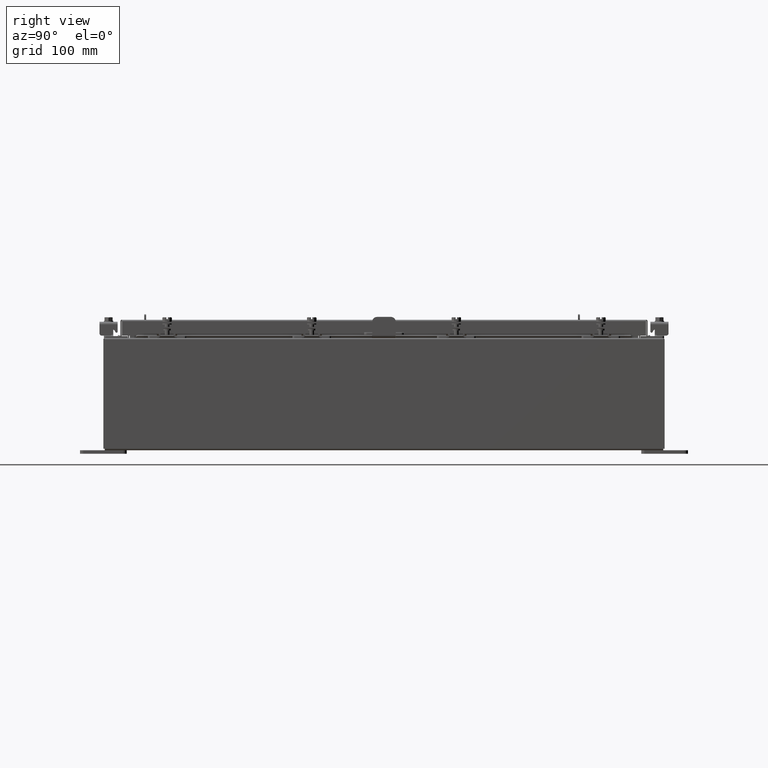
[diagram: clean part render]
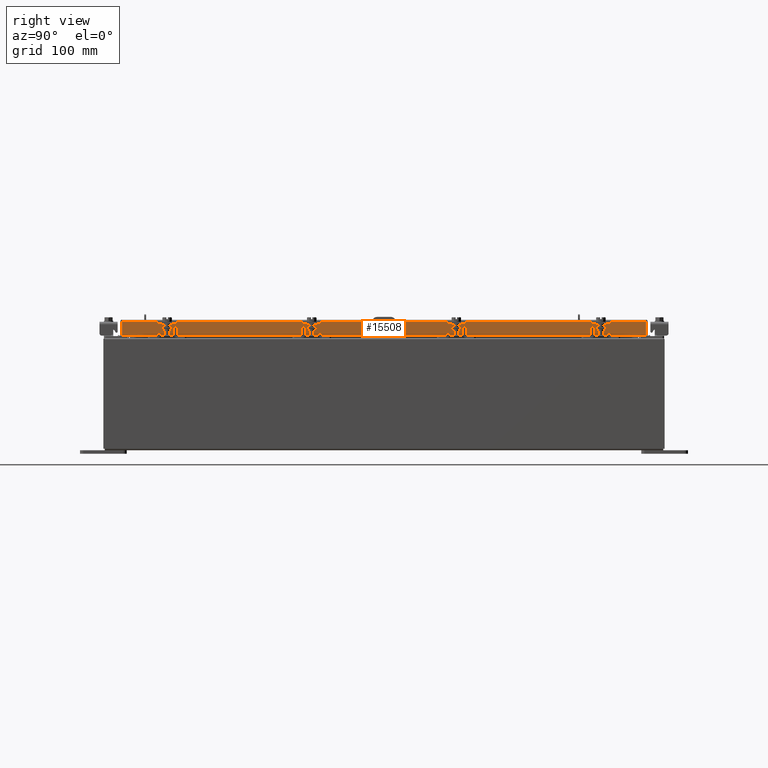
[diagram: same view with one face highlighted and labeled with its STEP entity id]
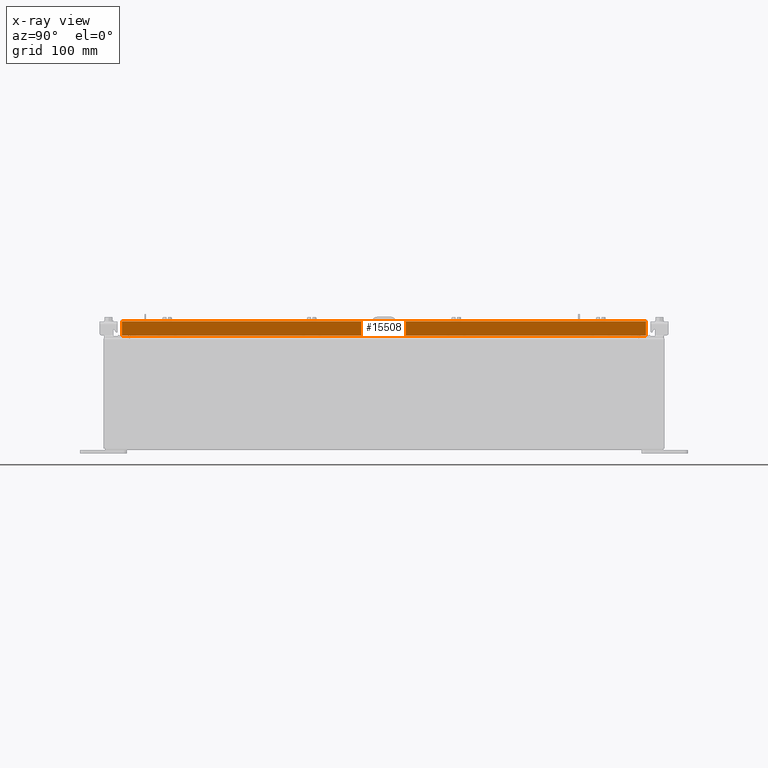
[diagram: x-ray of the same camera — body ghosted, the highlighted face saturated]
A machine part, right view. The second image highlights one B-rep face of the part: STEP entity #15508.
The next image is the same camera in x-ray: the body ghosted, the highlighted face saturated — about 0% of this face is hidden behind the body in this view.
In plain terms, the highlighted planar face has unit normal (1, 0, 0).
Its self-contained STEP definition (entity closure, byte-faithful):
#195 = AXIS2_PLACEMENT_3D ( 'NONE', #11952, #17305, #6614 ) ;
#389 = VERTEX_POINT ( 'NONE', #7679 ) ;
#1160 = EDGE_CURVE ( 'NONE', #1458, #13459, #16757, .T. ) ;
#1458 = VERTEX_POINT ( 'NONE', #18160 ) ;
#1678 = DIRECTION ( 'NONE',  ( -2.818880942772360100E-015, -6.982962677686265900E-015, 1.000000000000000000 ) ) ;
#3271 = ORIENTED_EDGE ( 'NONE', *, *, #20764, .F. ) ;
#4294 = CARTESIAN_POINT ( 'NONE',  ( 9.077999999999995900, 13.25515786437627200, -0.8500000000000002000 ) ) ;
#5007 = LINE ( 'NONE', #18063, #19812 ) ;
#5666 = CARTESIAN_POINT ( 'NONE',  ( 9.078000000000001200, 0.0000000000000000000, -0.08770000000000007000 ) ) ;
#6314 = VERTEX_POINT ( 'NONE', #16633 ) ;
#6614 = DIRECTION ( 'NONE',  ( 2.818880942772360100E-015, 0.0000000000000000000, -1.000000000000000000 ) ) ;
#6697 = VECTOR ( 'NONE', #1678, 39.37007874015748100 ) ;
#7387 = VECTOR ( 'NONE', #13283, 39.37007874015748100 ) ;
#7459 = VECTOR ( 'NONE', #11871, 39.37007874015748100 ) ;
#7642 = VERTEX_POINT ( 'NONE', #18742 ) ;
#7679 = CARTESIAN_POINT ( 'NONE',  ( 9.077999999999995900, 13.25515786437627100, -0.8500000000000002000 ) ) ;
#8189 = EDGE_CURVE ( 'NONE', #1458, #389, #21145, .T. ) ;
#8391 = CARTESIAN_POINT ( 'NONE',  ( 9.077999999999995900, -13.25515786437626400, -0.8500000000000002000 ) ) ;
#9042 = VECTOR ( 'NONE', #14588, 39.37007874015748100 ) ;
#9183 = ORIENTED_EDGE ( 'NONE', *, *, #8189, .F. ) ;
#9602 = LINE ( 'NONE', #16395, #9042 ) ;
#10711 = EDGE_CURVE ( 'NONE', #389, #11432, #12156, .T. ) ;
#11093 = EDGE_CURVE ( 'NONE', #13459, #7642, #19103, .T. ) ;
#11109 = EDGE_CURVE ( 'NONE', #6314, #7642, #9602, .T. ) ;
#11432 = VERTEX_POINT ( 'NONE', #8391 ) ;
#11871 = DIRECTION ( 'NONE',  ( 0.0000000000000000000, -1.000000000000000000, 0.0000000000000000000 ) ) ;
#11952 = CARTESIAN_POINT ( 'NONE',  ( 9.078000000000001200, 0.0000000000000000000, 2.585061485449907200E-014 ) ) ;
#12156 = LINE ( 'NONE', #4294, #7387 ) ;
#12702 = ORIENTED_EDGE ( 'NONE', *, *, #10711, .F. ) ;
#12778 = DIRECTION ( 'NONE',  ( 0.0000000000000000000, -1.000000000000000000, 0.0000000000000000000 ) ) ;
#13283 = DIRECTION ( 'NONE',  ( 0.0000000000000000000, -1.000000000000000000, 0.0000000000000000000 ) ) ;
#13459 = VERTEX_POINT ( 'NONE', #23116 ) ;
#13588 = FACE_OUTER_BOUND ( 'NONE', #19159, .T. ) ;
#14354 = VECTOR ( 'NONE', #18157, 39.37007874015748100 ) ;
#14588 = DIRECTION ( 'NONE',  ( -2.818880942772360100E-015, -6.982962677686265900E-015, 1.000000000000000000 ) ) ;
#15508 = ADVANCED_FACE ( 'NONE', ( #13588 ), #15541, .T. ) ;
#15541 = PLANE ( 'NONE',  #195 ) ;
#15561 = ORIENTED_EDGE ( 'NONE', *, *, #11109, .F. ) ;
#16395 = CARTESIAN_POINT ( 'NONE',  ( 9.078000000000001200, -14.00515786437626900, -0.07469999999999978000 ) ) ;
#16633 = CARTESIAN_POINT ( 'NONE',  ( 9.078000000000004700, -14.00515786437626400, -0.8499999999999996400 ) ) ;
#16757 = LINE ( 'NONE', #19718, #6697 ) ;
#17305 = DIRECTION ( 'NONE',  ( 1.000000000000000000, 0.0000000000000000000, 2.818880942772360100E-015 ) ) ;
#18063 = CARTESIAN_POINT ( 'NONE',  ( 9.078000000000004700, -14.09399999999999900, -0.8499999999999996400 ) ) ;
#18157 = DIRECTION ( 'NONE',  ( 0.0000000000000000000, -1.000000000000000000, 0.0000000000000000000 ) ) ;
#18160 = CARTESIAN_POINT ( 'NONE',  ( 9.078000000000004700, 14.00515786437627200, -0.8499999999999996400 ) ) ;
#18742 = CARTESIAN_POINT ( 'NONE',  ( 9.078000000000001200, -14.00515786437626900, -0.08770000000000007000 ) ) ;
#19103 = LINE ( 'NONE', #5666, #14354 ) ;
#19159 = EDGE_LOOP ( 'NONE', ( #15561, #3271, #12702, #9183, #21367, #21142 ) ) ;
#19718 = CARTESIAN_POINT ( 'NONE',  ( 9.078000000000001200, 14.00515786437626900, 1.236481095165428500E-013 ) ) ;
#19812 = VECTOR ( 'NONE', #12778, 39.37007874015748100 ) ;
#20764 = EDGE_CURVE ( 'NONE', #11432, #6314, #5007, .T. ) ;
#21142 = ORIENTED_EDGE ( 'NONE', *, *, #11093, .T. ) ;
#21145 = LINE ( 'NONE', #22577, #7459 ) ;
#21367 = ORIENTED_EDGE ( 'NONE', *, *, #1160, .T. ) ;
#22577 = CARTESIAN_POINT ( 'NONE',  ( 9.078000000000004700, -14.09399999999999900, -0.8499999999999996400 ) ) ;
#23116 = CARTESIAN_POINT ( 'NONE',  ( 9.078000000000001200, 14.00515786437626500, -0.08770000000000007000 ) ) ;